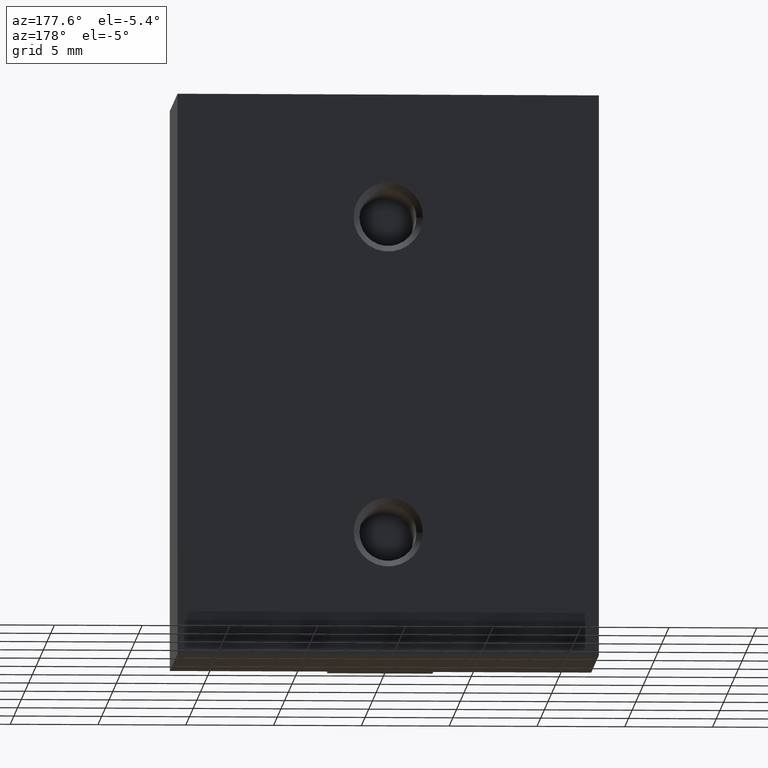
[diagram: clean part render]
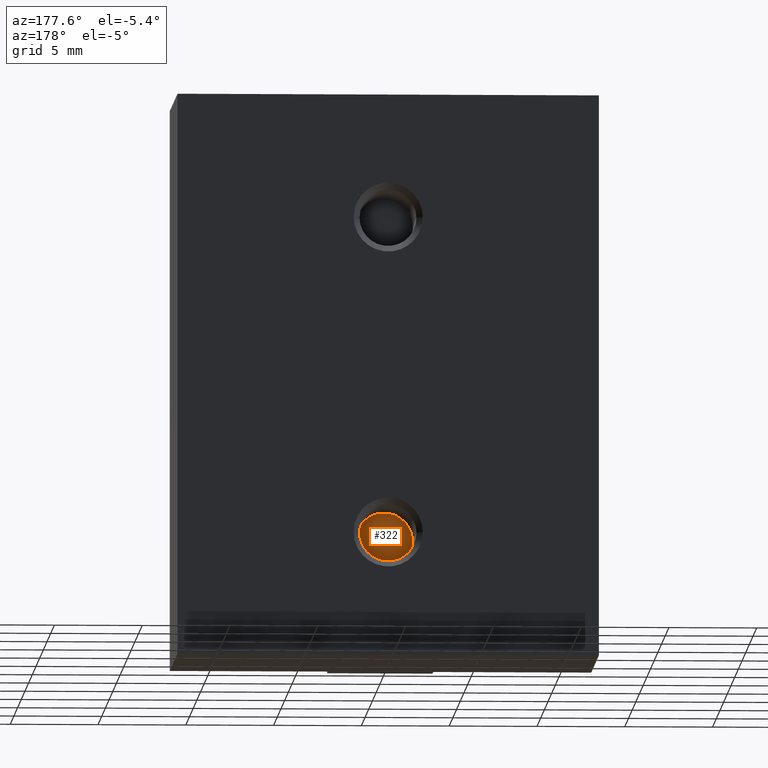
[diagram: same view with one face highlighted and labeled with its STEP entity id]
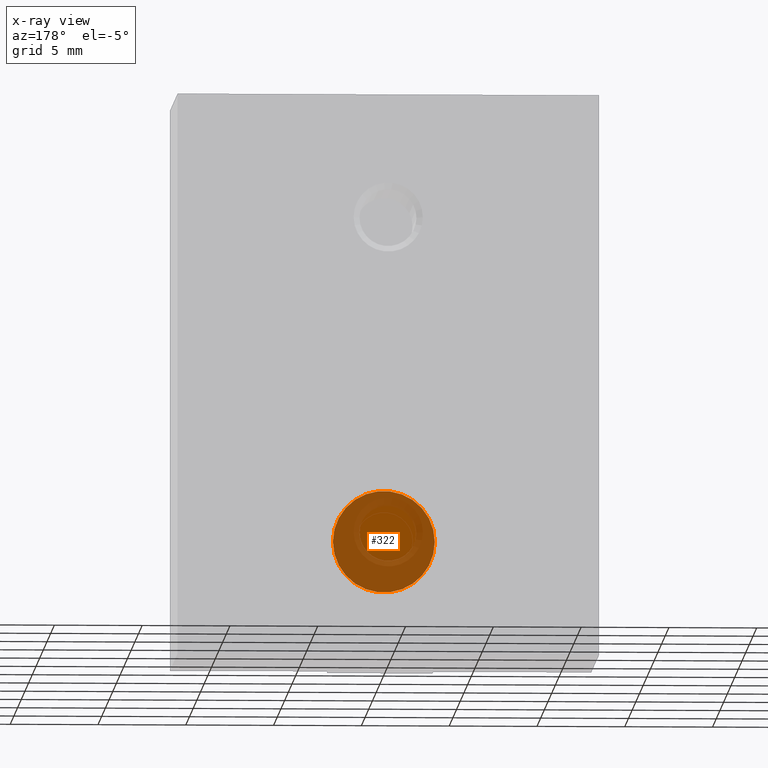
[diagram: x-ray of the same camera — body ghosted, the highlighted face saturated]
A machine part, auxiliary view. The second image highlights one B-rep face of the part: STEP entity #322.
The next image is the same camera in x-ray: the body ghosted, the highlighted face saturated — about 70% of this face is hidden behind the body in this view.
In plain terms, the highlighted planar face has unit normal (0, -1, 0).
Its self-contained STEP definition (entity closure, byte-faithful):
#38=PLANE('',#417);
#53=FACE_OUTER_BOUND('',#73,.T.);
#73=EDGE_LOOP('',(#239));
#157=CIRCLE('',#416,2.9);
#168=VERTEX_POINT('',#558);
#196=EDGE_CURVE('',#168,#168,#157,.T.);
#239=ORIENTED_EDGE('',*,*,#196,.T.);
#322=ADVANCED_FACE('',(#53),#38,.F.);
#416=AXIS2_PLACEMENT_3D('',#560,#458,#459);
#417=AXIS2_PLACEMENT_3D('',#561,#460,#461);
#458=DIRECTION('center_axis',(0.,1.,0.));
#459=DIRECTION('ref_axis',(-1.,0.,0.));
#460=DIRECTION('center_axis',(0.,-1.,0.));
#461=DIRECTION('ref_axis',(0.,0.,-1.));
#558=CARTESIAN_POINT('',(2.9,5.5,-9.));
#560=CARTESIAN_POINT('Origin',(0.,5.5,-9.));
#561=CARTESIAN_POINT('Origin',(0.,5.5,-9.));